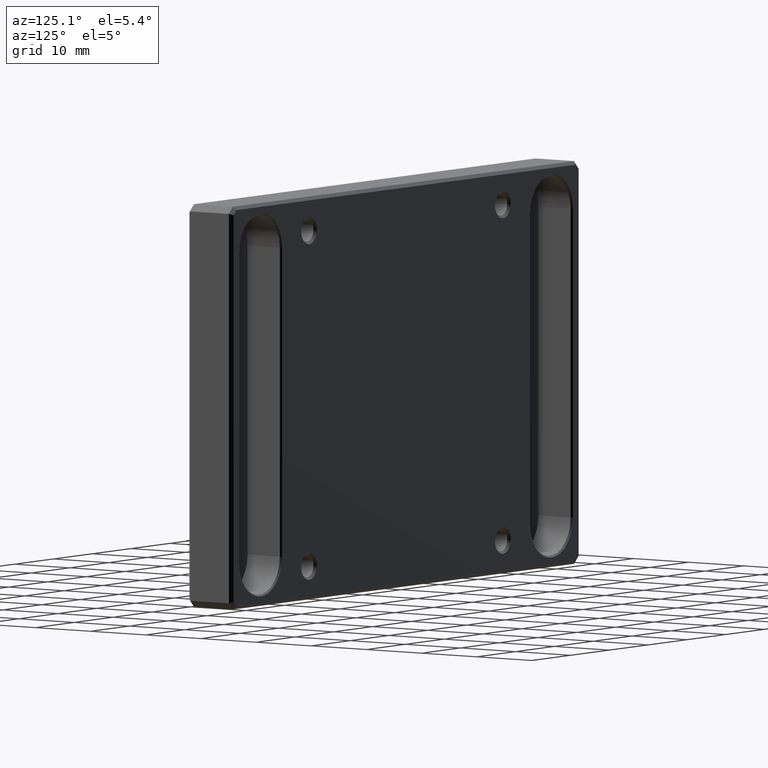
[diagram: clean part render]
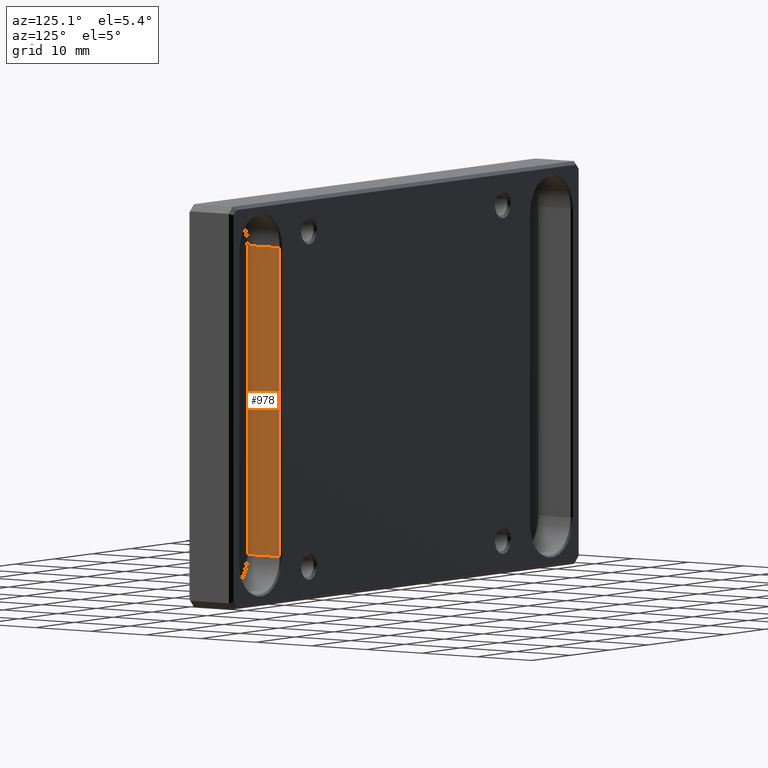
[diagram: same view with one face highlighted and labeled with its STEP entity id]
A machine part, auxiliary view. The second image highlights one B-rep face of the part: STEP entity #978.
In plain terms, the highlighted planar face has unit normal (-1, 0, 0).
Its self-contained STEP definition (entity closure, byte-faithful):
#83 = DIRECTION ( 'NONE',  ( 0.000000000000000000, -0.000000000000000000, 1.000000000000000000 ) ) ;
#120 = ORIENTED_EDGE ( 'NONE', *, *, #1215, .T. ) ;
#136 = LINE ( 'NONE', #1702, #1061 ) ;
#297 = VERTEX_POINT ( 'NONE', #1419 ) ;
#310 = VECTOR ( 'NONE', #1484, 1000.000000000000000 ) ;
#337 = ORIENTED_EDGE ( 'NONE', *, *, #1430, .T. ) ;
#352 = CARTESIAN_POINT ( 'NONE',  ( 32.20000000000000284, 7.750000000000000000, 23.00000000000000355 ) ) ;
#423 = CARTESIAN_POINT ( 'NONE',  ( 32.20000000000000284, 7.750000000000000000, -23.00000000000000355 ) ) ;
#446 = CARTESIAN_POINT ( 'NONE',  ( 32.20000000000000284, 1.900000000000000577, 23.00000000000000355 ) ) ;
#484 = ORIENTED_EDGE ( 'NONE', *, *, #1014, .F. ) ;
#640 = ORIENTED_EDGE ( 'NONE', *, *, #1728, .F. ) ;
#825 = LINE ( 'NONE', #977, #310 ) ;
#846 = PLANE ( 'NONE',  #1216 ) ;
#890 = VECTOR ( 'NONE', #1027, 1000.000000000000000 ) ;
#961 = FACE_OUTER_BOUND ( 'NONE', #1122, .T. ) ;
#977 = CARTESIAN_POINT ( 'NONE',  ( 32.20000000000000284, 1.900000000000000577, -23.00000000000000355 ) ) ;
#978 = ADVANCED_FACE ( 'NONE', ( #961 ), #846, .F. ) ;
#1014 = EDGE_CURVE ( 'NONE', #1665, #1634, #825, .T. ) ;
#1027 = DIRECTION ( 'NONE',  ( -0.000000000000000000, 1.000000000000000000, -0.000000000000000000 ) ) ;
#1046 = VECTOR ( 'NONE', #83, 1000.000000000000000 ) ;
#1061 = VECTOR ( 'NONE', #1571, 1000.000000000000000 ) ;
#1122 = EDGE_LOOP ( 'NONE', ( #337, #120, #640, #484 ) ) ;
#1215 = EDGE_CURVE ( 'NONE', #1549, #297, #1676, .T. ) ;
#1216 = AXIS2_PLACEMENT_3D ( 'NONE', #1624, #1512, #1500 ) ;
#1419 = CARTESIAN_POINT ( 'NONE',  ( 32.20000000000000284, 7.750000000000000000, 23.00000000000000355 ) ) ;
#1429 = CARTESIAN_POINT ( 'NONE',  ( 32.20000000000000284, 1.900000000000000577, 23.00000000000000355 ) ) ;
#1430 = EDGE_CURVE ( 'NONE', #1665, #1549, #136, .T. ) ;
#1484 = DIRECTION ( 'NONE',  ( 0.000000000000000000, 0.000000000000000000, 1.000000000000000000 ) ) ;
#1500 = DIRECTION ( 'NONE',  ( 0.000000000000000000, 0.000000000000000000, 1.000000000000000000 ) ) ;
#1512 = DIRECTION ( 'NONE',  ( -1.000000000000000000, 0.000000000000000000, 0.000000000000000000 ) ) ;
#1549 = VERTEX_POINT ( 'NONE', #423 ) ;
#1571 = DIRECTION ( 'NONE',  ( -0.000000000000000000, 1.000000000000000000, -0.000000000000000000 ) ) ;
#1624 = CARTESIAN_POINT ( 'NONE',  ( 32.20000000000000284, 1.900000000000000577, -23.00000000000000355 ) ) ;
#1634 = VERTEX_POINT ( 'NONE', #446 ) ;
#1665 = VERTEX_POINT ( 'NONE', #1674 ) ;
#1674 = CARTESIAN_POINT ( 'NONE',  ( 32.20000000000000284, 1.900000000000000577, -23.00000000000000355 ) ) ;
#1676 = LINE ( 'NONE', #352, #1046 ) ;
#1692 = LINE ( 'NONE', #1429, #890 ) ;
#1702 = CARTESIAN_POINT ( 'NONE',  ( 32.20000000000000284, 1.900000000000000577, -23.00000000000000355 ) ) ;
#1728 = EDGE_CURVE ( 'NONE', #1634, #297, #1692, .T. ) ;